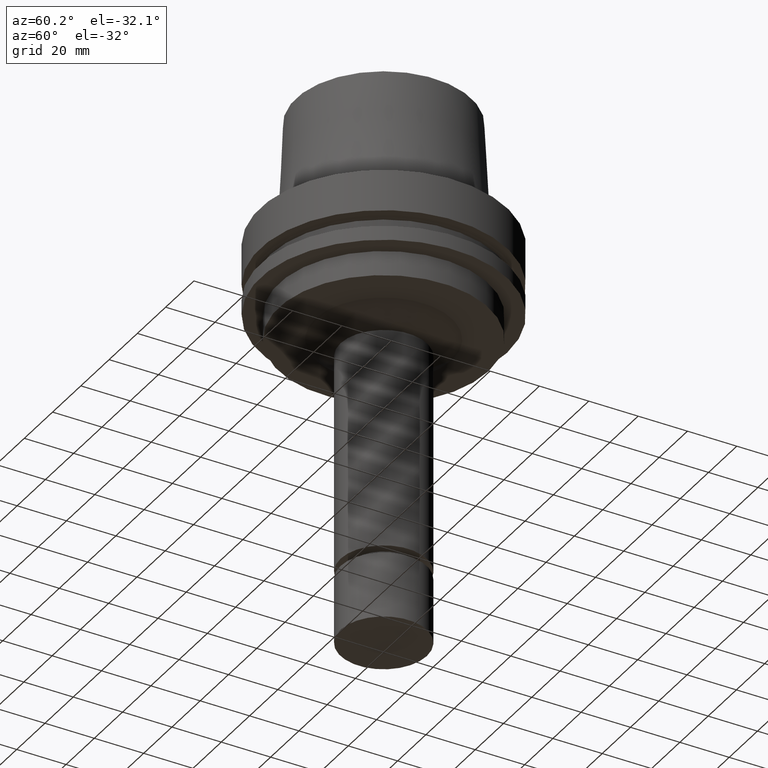
[diagram: clean part render]
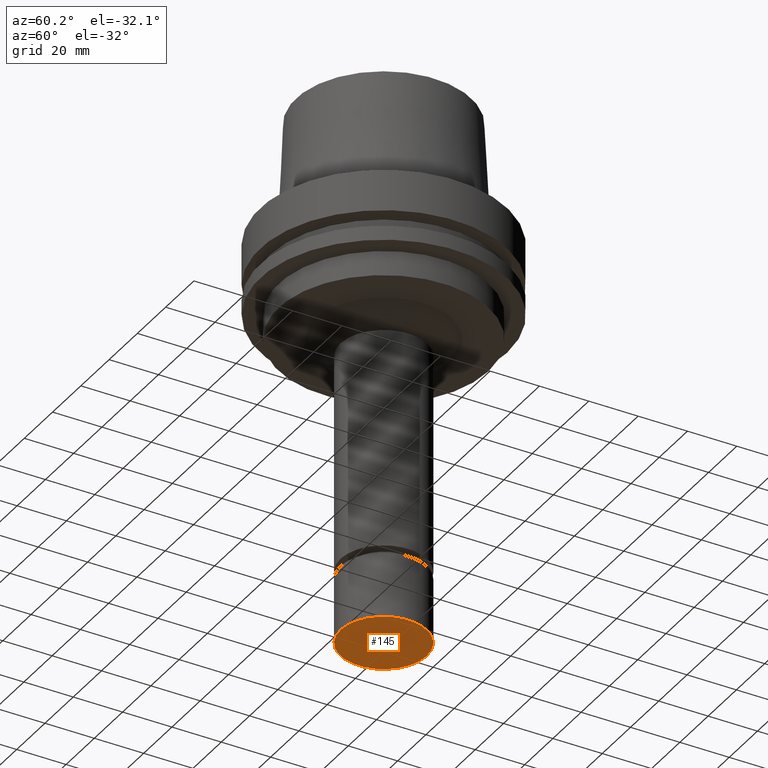
[diagram: same view with one face highlighted and labeled with its STEP entity id]
A machine part, auxiliary view. The second image highlights one B-rep face of the part: STEP entity #145.
In plain terms, the highlighted planar face has unit normal (0, 0, -1).
Its self-contained STEP definition (entity closure, byte-faithful):
#120=EDGE_CURVE('Unnamed[1]',#281,#281,#282,.T.);
#145=ADVANCED_FACE('Unnamed[1]',(#318),#319,.T.);
#281=VERTEX_POINT('',#494);
#282=CIRCLE('',#495,17.5);
#318=FACE_OUTER_BOUND('',#541,.T.);
#319=PLANE('',#542);
#494=CARTESIAN_POINT('',(1.01033360929657E-014,17.5,-165.0));
#495=AXIS2_PLACEMENT_3D('',#717,#718,#719);
#541=EDGE_LOOP('',(#758));
#542=AXIS2_PLACEMENT_3D('',#759,#760,#761);
#717=CARTESIAN_POINT('',(1.01033360929657E-014,2.02066721859313E-014,-165.0));
#718=DIRECTION('',(6.12323399573677E-017,1.22464679914735E-016,-1.0));
#719=DIRECTION('',(-1.23259516440783E-032,1.0,1.22464679914735E-016));
#758=ORIENTED_EDGE('',*,*,#120,.T.);
#759=CARTESIAN_POINT('',(1.01033360929657E-014,8.75000000000002,-165.0));
#760=DIRECTION('',(6.12323399573677E-017,1.22464679914735E-016,-1.0));
#761=DIRECTION('',(-1.23259516440783E-032,1.0,1.22464679914735E-016));